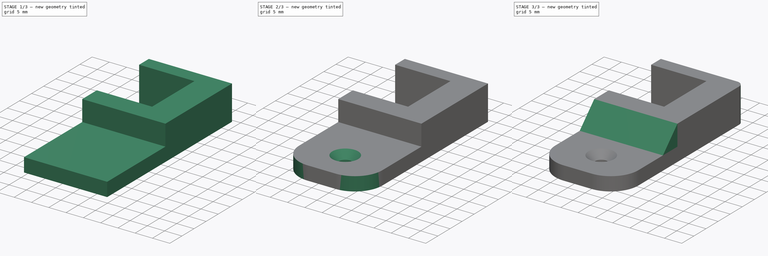
[diagram: build sequence overview — one tinted view per stage of 3, left to right]
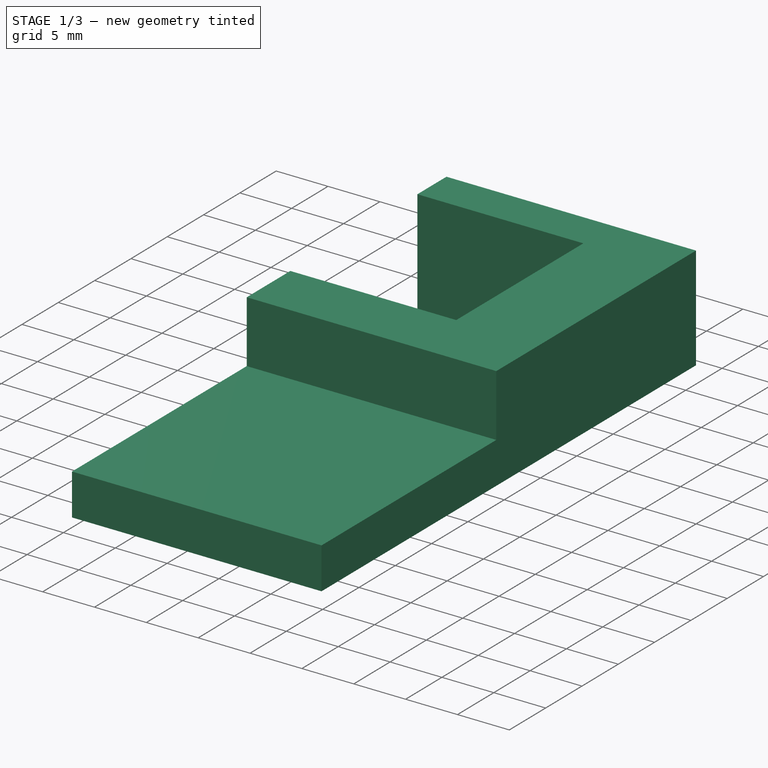
[diagram: stage 1 of 3 — iso view after this stage's code; geometry added in this stage tinted green]
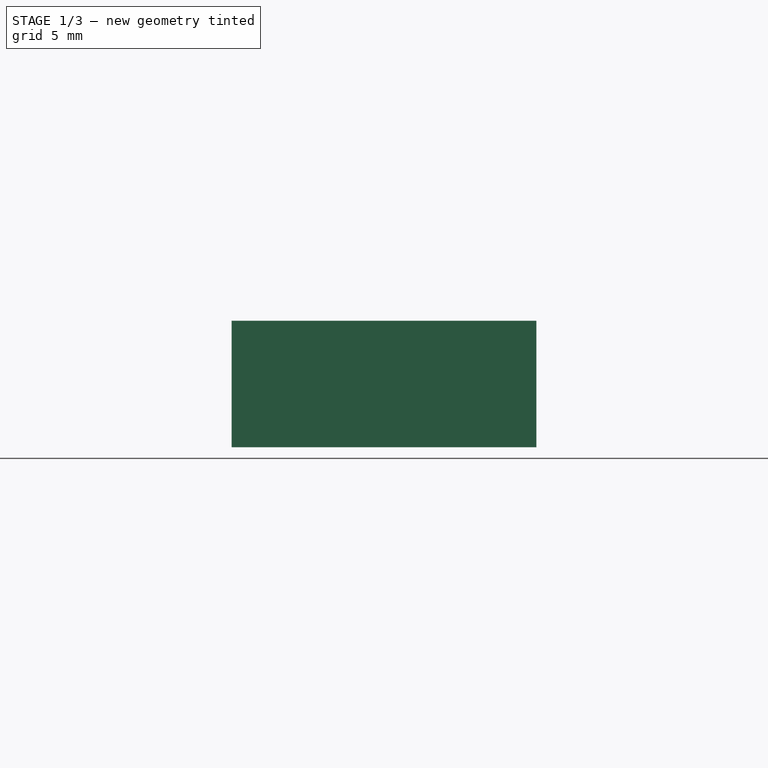
[diagram: stage 1 of 3 — front view after this stage's code; geometry added in this stage tinted green]
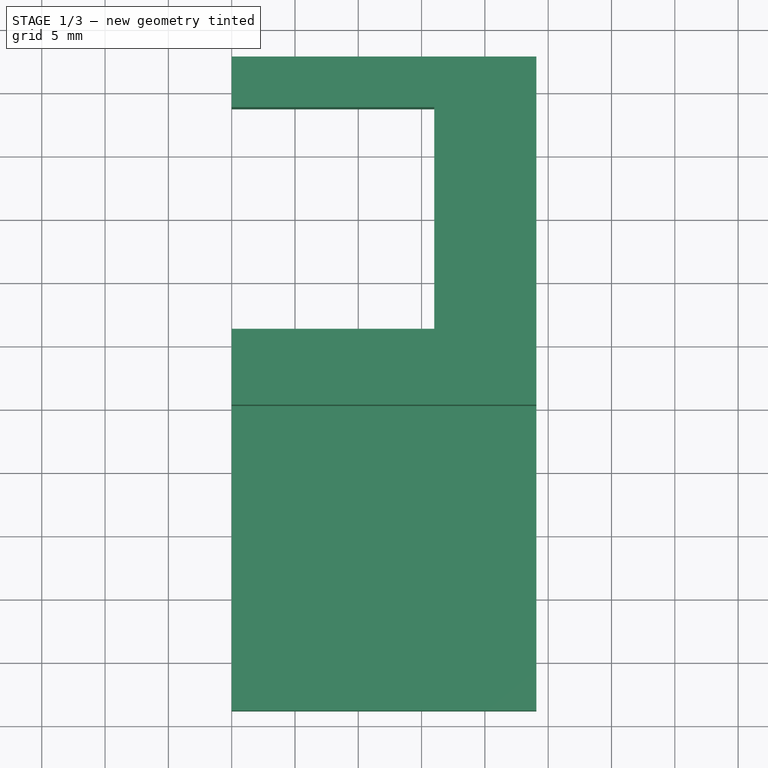
[diagram: stage 1 of 3 — top view after this stage's code; geometry added in this stage tinted green]
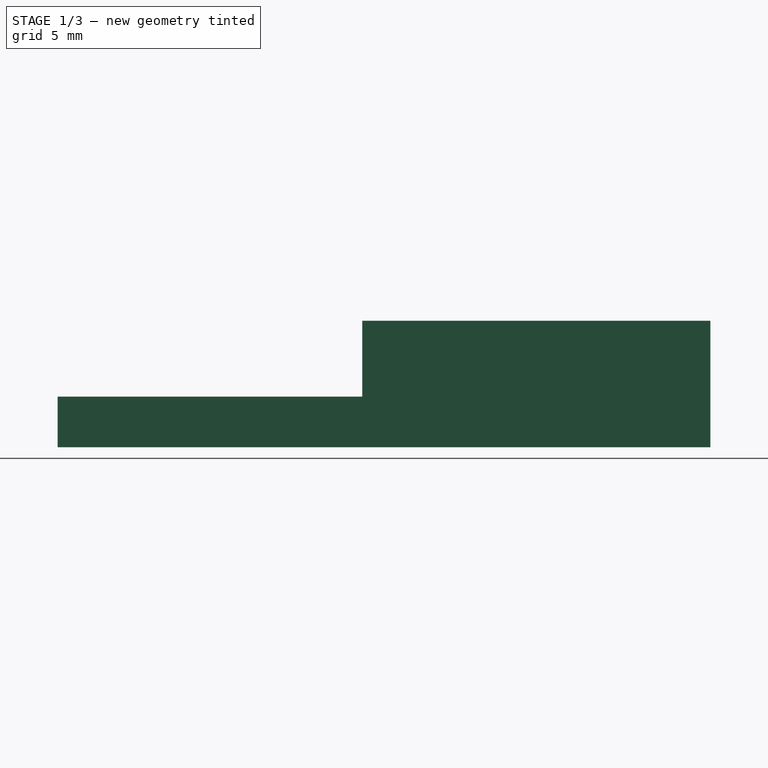
[diagram: stage 1 of 3 — right view after this stage's code; geometry added in this stage tinted green]
FCSTD DOCUMENT  (FreeCAD 0.20R29410 (Git))
Label: Cupboard Clip
License: All rights reserved
LicenseURL: http://en.wikipedia.org/wiki/All_rights_reserved
objects: Sketcher::SketchObject×4, PartDesign::Pad×3, PartDesign::Fillet×2, PartDesign::Pocket×1, PartDesign::Chamfer×1, PartDesign::Body×1
note: 19 computed .brp shape members not serialized (recipe doc carries the construction recipe); baked Part::Feature solids carry a one-line shape summary decoded from their .brp

FEATURE [Sketcher::SketchObject] Sketch
  FullyConstrained = true
  MapMode = 5
  Support = -> [XY_Plane]
  sketch-geometry (12):
    g0: LineSegment StartX=-16 StartY=8.75 StartZ=0 EndX=16 EndY=8.75 EndZ=0
    g1: LineSegment StartX=16 StartY=8.75 StartZ=0 EndX=16 EndY=-8.75 EndZ=0
    g2: LineSegment StartX=16 StartY=-8.75 StartZ=0 EndX=-16 EndY=-8.75 EndZ=0
    g3: LineSegment StartX=-16 StartY=-8.75 StartZ=0 EndX=-16 EndY=8.75 EndZ=0
    g4: LineSegment StartX=0 StartY=8.75 StartZ=0 EndX=0 EndY=12.75 EndZ=0
    g5: LineSegment StartX=0 StartY=12.75 StartZ=0 EndX=24.0623 EndY=12.75 EndZ=0
    g6: LineSegment StartX=24.0623 StartY=12.75 StartZ=0 EndX=24.0623 EndY=-14.75 EndZ=0
    g7: LineSegment StartX=24.0623 StartY=-14.75 StartZ=0 EndX=0 EndY=-14.75 EndZ=0
    g8: LineSegment StartX=0 StartY=-14.75 StartZ=0 EndX=0 EndY=-8.75 EndZ=0
    g9: LineSegment StartX=0 StartY=8.75 StartZ=0 EndX=16 EndY=8.75 EndZ=0
    g10: LineSegment StartX=16 StartY=-8.75 StartZ=0 EndX=16 EndY=8.75 EndZ=0
    g11: LineSegment StartX=16 StartY=-8.75 StartZ=0 EndX=0 EndY=-8.75 EndZ=0
  constraints (33):
    c: Coincident(g0,g1)
    c: Coincident(g1,g2)
    c: Coincident(g2,g3)
    c: Coincident(g3,g0)
    c: Horizontal(g0)
    c: Horizontal(g2)
    c: Vertical(g1)
    c: Vertical(g3)
    c: Symmetric(g1,g0,g-1)
    c: DistanceX(g0,g0) = 32
    c: DistanceY(g1,g1) = 17.5
    c: PointOnObject(g4,g0)
    c: Vertical(g4)
    c: Coincident(g4,g5)
    c: Horizontal(g5)
    c: Coincident(g5,g6)
    c: Vertical(g6)
    c: Coincident(g6,g7)
    c: Horizontal(g7)
    c: Coincident(g7,g8)
    c: PointOnObject(g8,g2)
    c: Vertical(g8)
    c: PointOnObject(g7,g-2)
    c: PointOnObject(g4,g-2)
    c: DistanceY(g4,g4) = 4
    c: Distance(g5,g0) = 9
    c: DistanceY(g8,g8) = 6
    c: Coincident(g9,g4)
    c: Coincident(g9,g0)
    c: Coincident(g10,g1)
    c: Coincident(g10,g9)
    c: Coincident(g11,g10)
    c: Coincident(g11,g8)
FEATURE [PartDesign::Pad] Pad
  Direction = (0,0,1)
  Length = 10
  Length2 = 10
  Profile = -> Sketch
  ReferenceAxis = -> Sketch [N_Axis]
  Type = 0
FEATURE [Sketcher::SketchObject] Sketch001
  ExternalGeometry = -> [Pad]
  FullyConstrained = true
  MapMode = 5
  Placement = pos=(0,0,0) rot=(1,0,0;3.14159rad)
  Support = -> [Pad]
  sketch-geometry (4):
    g0: LineSegment StartX=0 StartY=14.75 StartZ=0 EndX=24.0623 EndY=14.75 EndZ=0
    g1: LineSegment StartX=24.0623 StartY=14.75 StartZ=0 EndX=24.0623 EndY=38.8123 EndZ=0
    g2: LineSegment StartX=24.0623 StartY=38.8123 StartZ=0 EndX=0 EndY=38.8123 EndZ=0
    g3: LineSegment StartX=0 StartY=38.8123 StartZ=0 EndX=0 EndY=14.75 EndZ=0
  constraints (11):
    c: Coincident(g0,g1)
    c: Coincident(g1,g2)
    c: Coincident(g2,g3)
    c: Coincident(g3,g0)
    c: Horizontal(g0)
    c: Horizontal(g2)
    c: Vertical(g1)
    c: Vertical(g3)
    c: Coincident(g0,g-3)
    c: PointOnObject(g-3,g1)
    c: Equal(g2,g1)
FEATURE [PartDesign::Pad] Pad001
  BaseFeature = -> Pad
  Direction = (0,0,-1)
  Length = 4
  Length2 = 10
  Profile = -> Sketch001
  ReferenceAxis = -> Sketch001 [N_Axis]
  Reversed = true
  Type = 0
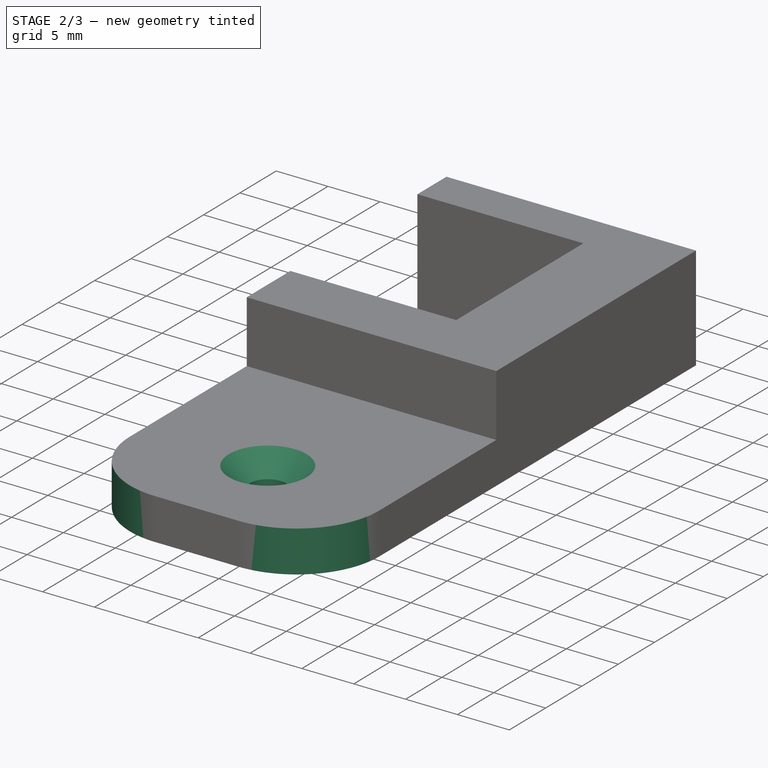
[diagram: stage 2 of 3 — iso view after this stage's code; geometry added in this stage tinted green]
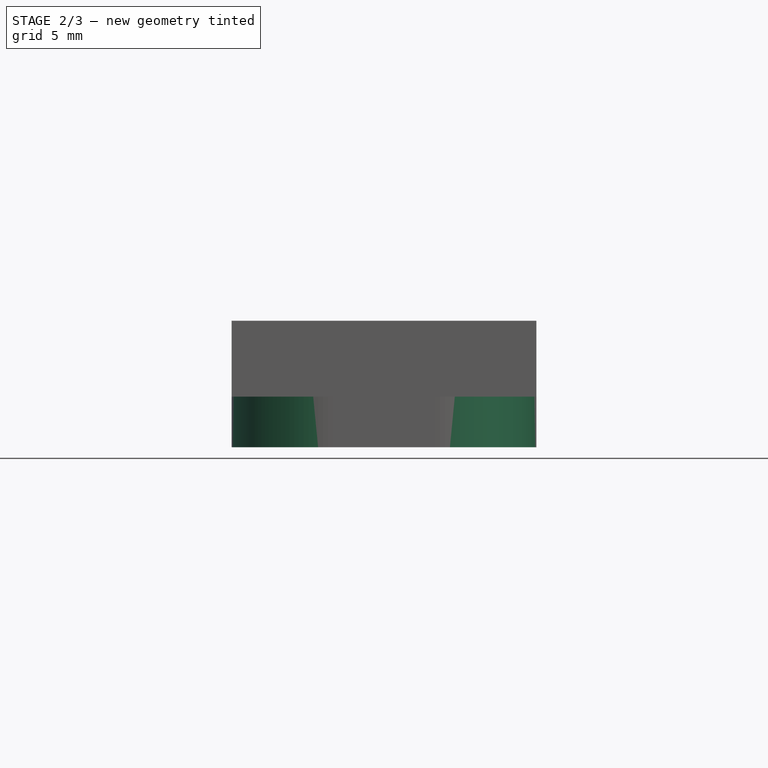
[diagram: stage 2 of 3 — front view after this stage's code; geometry added in this stage tinted green]
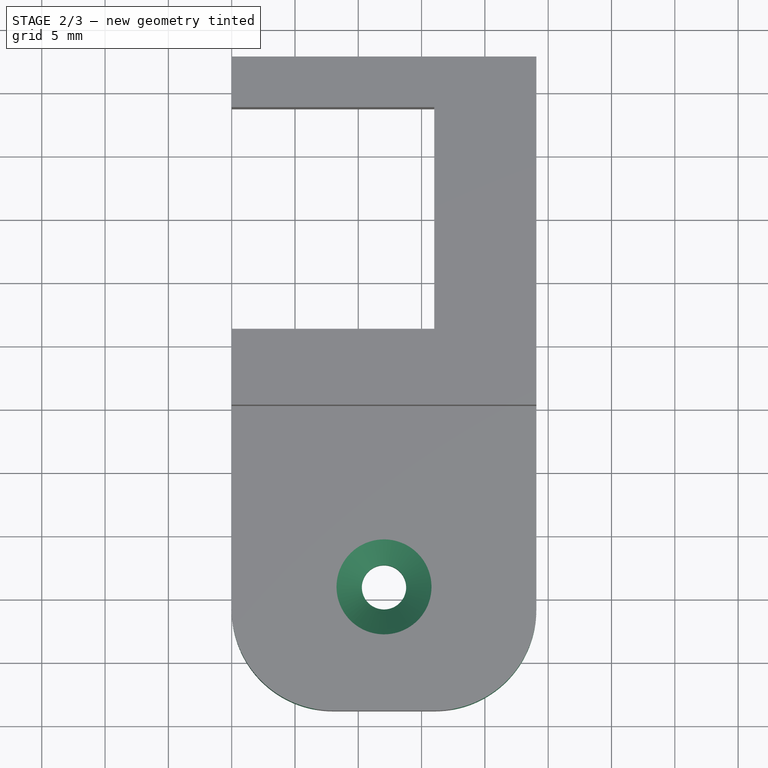
[diagram: stage 2 of 3 — top view after this stage's code; geometry added in this stage tinted green]
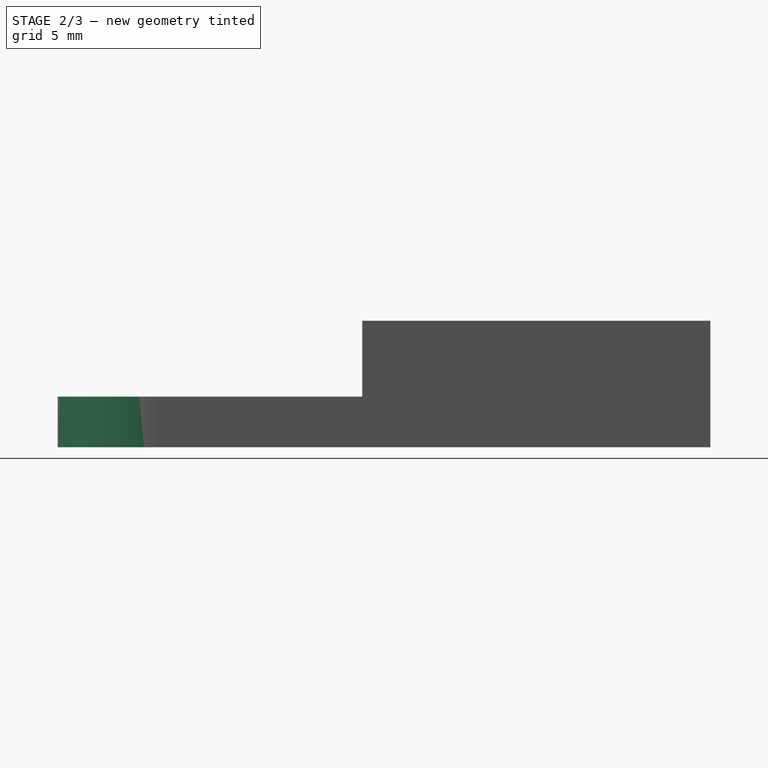
[diagram: stage 2 of 3 — right view after this stage's code; geometry added in this stage tinted green]
FEATURE [Sketcher::SketchObject] Sketch002
  ExternalGeometry = -> [Pad001]
  FullyConstrained = true
  MapMode = 5
  Placement = pos=(0,0,4) rot=(0,0,1;0rad)
  Support = -> [Pad001]
  sketch-geometry (3):
    g0: Circle CenterX=12.0311 CenterY=-29.0397 CenterZ=0 NormalX=0 NormalY=0 NormalZ=1 AngleXU=0 Radius=1.75
    g1: LineSegment StartX=0 StartY=-38.8123 StartZ=0 EndX=12.0311 EndY=-29.0397 EndZ=0
    g2: LineSegment StartX=12.0311 StartY=-29.0397 StartZ=0 EndX=24.0623 EndY=-38.8123 EndZ=0
  constraints (7):
    c: Diameter(g0) = 3.5
    c: Coincident(g1,g-4)
    c: Coincident(g1,g0)
    c: Coincident(g2,g0)
    c: Coincident(g2,g-4)
    c: Equal(g1,g2)
    c: Distance(g2) = 15.5
FEATURE [PartDesign::Pocket] Pocket
  BaseFeature = -> Pad001
  Direction = (0,0,-1)
  Length = 5
  Length2 = 5
  Profile = -> Sketch002
  ReferenceAxis = -> Sketch002 [N_Axis]
  Type = 1
FEATURE [PartDesign::Chamfer] Chamfer
  Angle = 45
  Base = -> Pocket [Edge37]
  BaseFeature = -> Pocket
  ChamferType = 0
  FlipDirection = false
  Size = 2
  Size2 = 1
  SupportTransform = false
  UseAllEdges = false
FEATURE [PartDesign::Fillet] Fillet
  Base = -> Chamfer [Edge23,Edge22]
  BaseFeature = -> Chamfer
  Radius = 8
  SupportTransform = false
  UseAllEdges = false
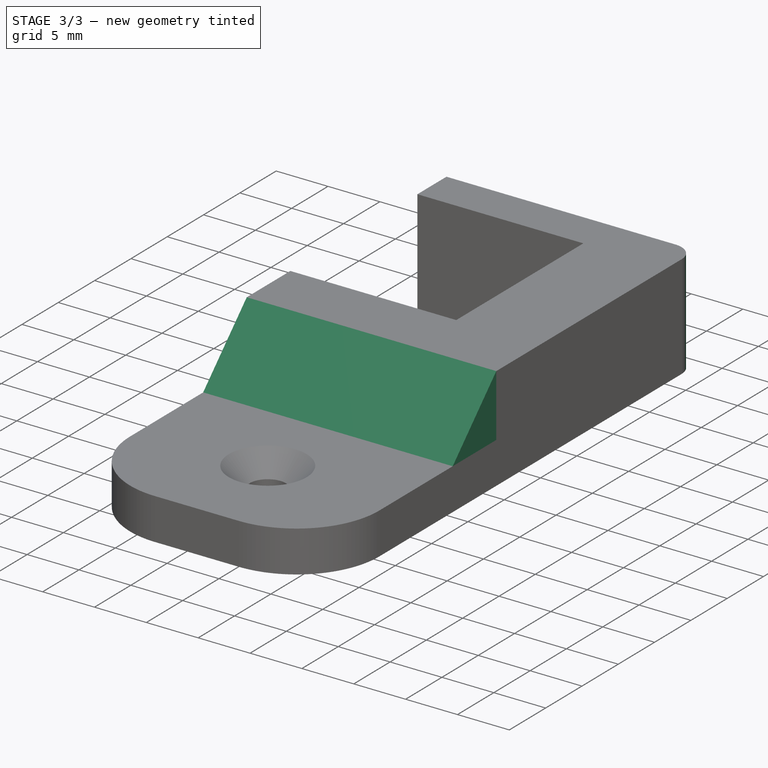
[diagram: stage 3 of 3 — iso view after this stage's code; geometry added in this stage tinted green]
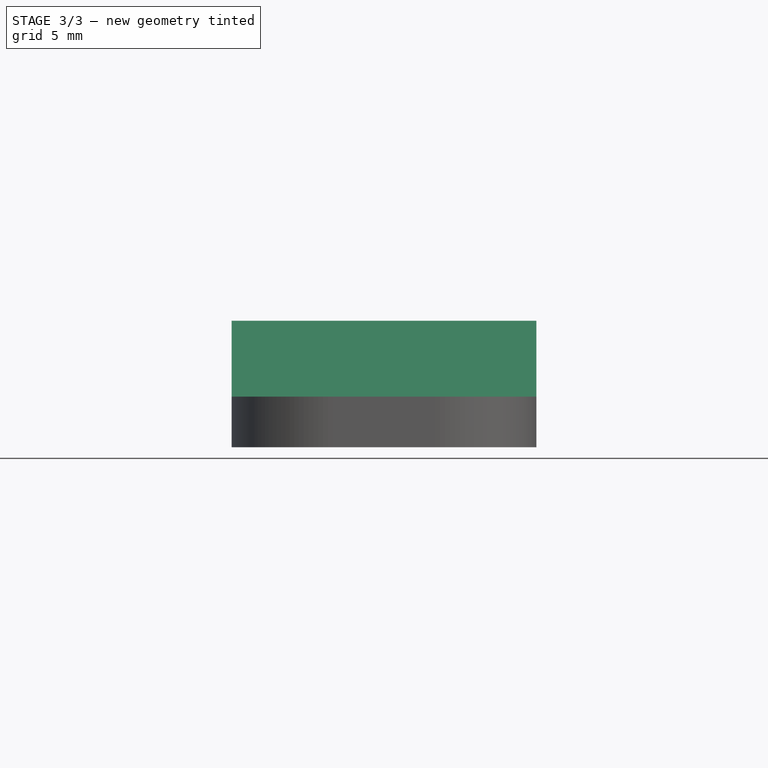
[diagram: stage 3 of 3 — front view after this stage's code; geometry added in this stage tinted green]
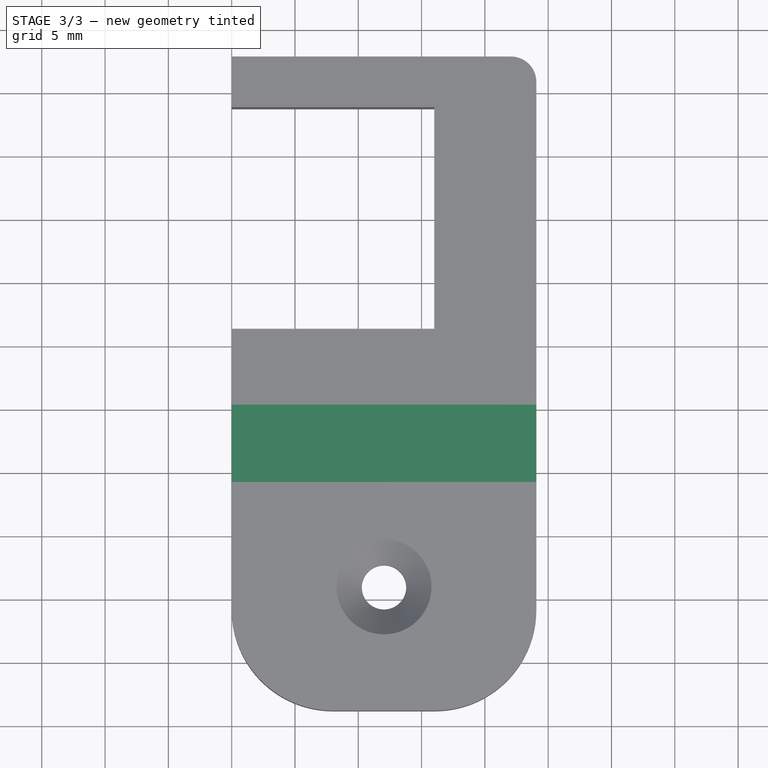
[diagram: stage 3 of 3 — top view after this stage's code; geometry added in this stage tinted green]
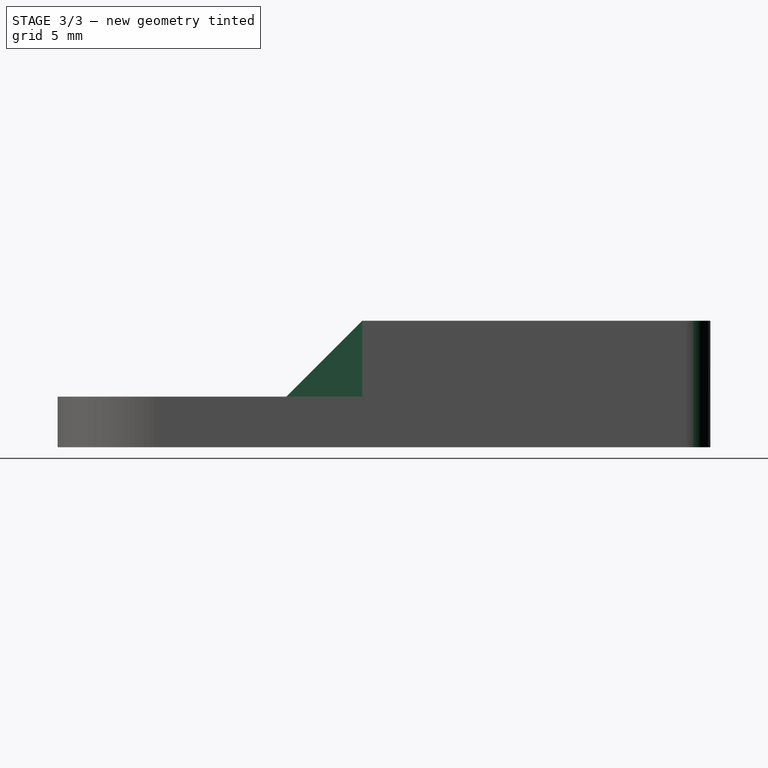
[diagram: stage 3 of 3 — right view after this stage's code; geometry added in this stage tinted green]
FEATURE [PartDesign::Fillet] Fillet001
  Base = -> Fillet [Edge28]
  BaseFeature = -> Fillet
  Radius = 2
  SupportTransform = false
  UseAllEdges = false
FEATURE [Sketcher::SketchObject] Sketch003
  ExternalGeometry = -> [Fillet001]
  FullyConstrained = true
  MapMode = 5
  Placement = pos=(24.0623,0,0) rot=(0.57735,0.57735,0.57735;2.0944rad)
  Support = -> [Fillet001]
  sketch-geometry (3):
    g0: LineSegment StartX=-20.75 StartY=4 StartZ=0 EndX=-14.75 EndY=10 EndZ=0
    g1: LineSegment StartX=-14.75 StartY=4 StartZ=0 EndX=-14.75 EndY=10 EndZ=0
    g2: LineSegment StartX=-20.75 StartY=4 StartZ=0 EndX=-14.75 EndY=4 EndZ=0
  constraints (7):
    c: PointOnObject(g0,g-3)
    c: Coincident(g0,g-4)
    c: Coincident(g1,g-4)
    c: Coincident(g1,g0)
    c: Coincident(g2,g0)
    c: Coincident(g2,g1)
    c: Equal(g2,g1)
FEATURE [PartDesign::Pad] Pad002
  BaseFeature = -> Fillet001
  Direction = (1,0,0)
  Length = 25
  Length2 = 10
  Profile = -> Sketch003
  ReferenceAxis = -> Sketch003 [N_Axis]
  Reversed = true
  Type = 3
  UpToFace = -> Fillet001 [Face9]
FEATURE [PartDesign::Body] Body
  Group = -> [Sketch,Pad,Sketch001,Pad001,Sketch002,Pocket,Chamfer,Fillet,Fillet001,Sketch003,Pad002]
  Origin = -> Origin
  Tip = -> Pad002
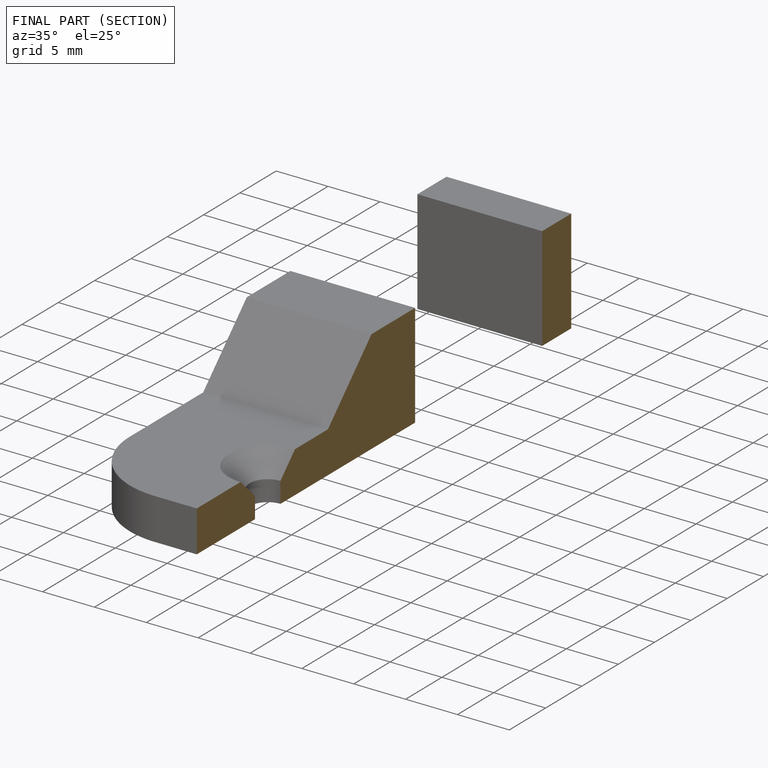
[diagram: finished part — half-section view (interior)]
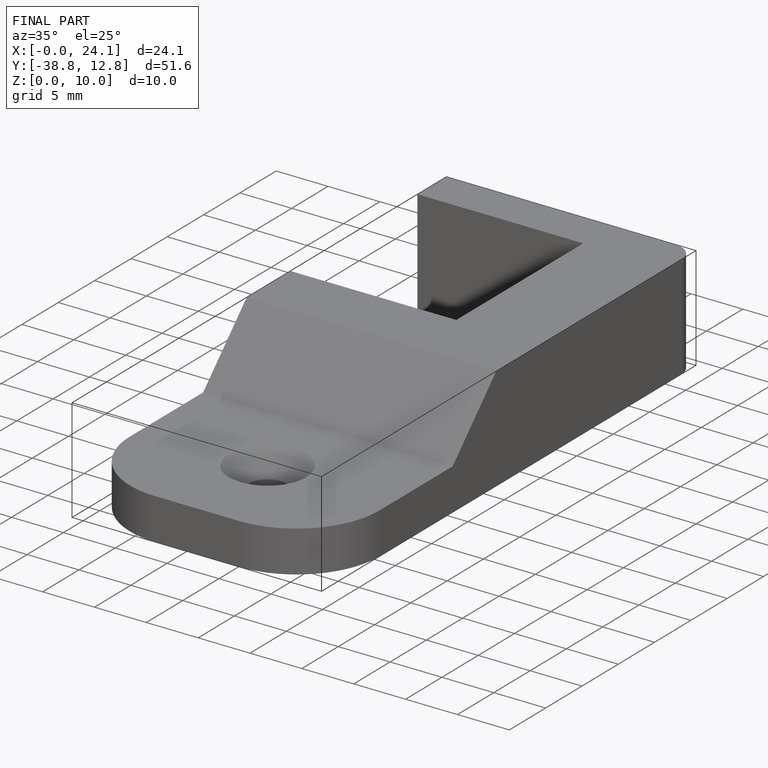
[diagram: finished part — iso view with bounding-box wireframe]
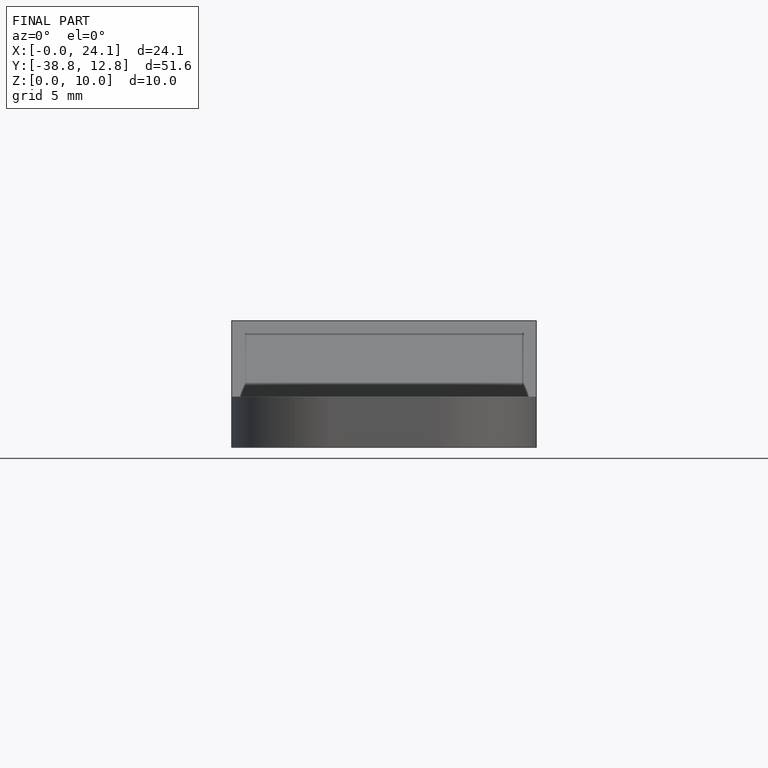
[diagram: finished part — front view with bounding-box wireframe]
